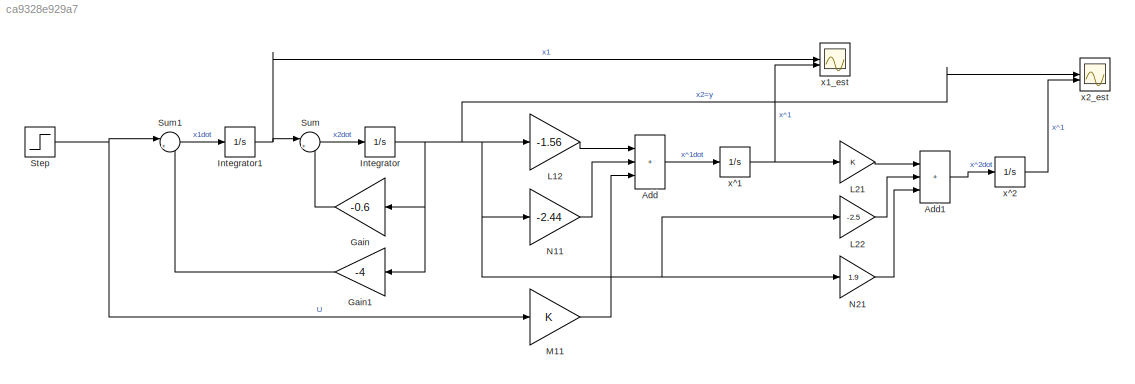
MODEL slx_ca9328e929a7
KIND model
CONFIG AbsTol = auto
CONFIG EnableMultiTasking = off
CONFIG FixedStep = auto
CONFIG MaxStep = auto
CONFIG MinStep = auto
CONFIG RelTol = 1e-3
CONFIG SampleTimeConstraint = Unconstrained
CONFIG SolverName = VariableStepAuto
CONFIG StartTime = 0.0
CONFIG StopTime = 10.0
BLOCK [Sum] Add
  IconShape = rectangular
  Inputs = +++
BLOCK [Sum] Add1
  IconShape = rectangular
  Inputs = +++
BLOCK [Gain] Gain
  Gain = -0.6
BLOCK [Gain] Gain1
  Gain = -4
BLOCK [Integrator] Integrator
BLOCK [Integrator] Integrator1
BLOCK [Gain] L12
  Gain = -1.56
BLOCK [Gain] L21
BLOCK [Gain] L22
  Gain = -2.5
BLOCK [Gain] M11
BLOCK [Gain] N11
  Gain = -2.44
BLOCK [Gain] N21
  Gain = 1.9
BLOCK [Step] Step
  SampleTime = 0
BLOCK [Sum] Sum
  Inputs = |++
BLOCK [Sum] Sum1
  Inputs = |++
BLOCK [Scope] x1_est
  Floating = off
  NumInputPorts = 2
  ScopeSpecificationString = Simulink.scopes.TimeScopeBlockCfg('CurrentConfiguration', extmgr.ConfigurationSet(extmgr.Configuration('Core','General UI',true),extmgr.Configuration('Core','Source UI',true),extmgr.Configuration('Sources','WiredSimulink',true,'DataLoggingVariableName','ScopeData1'),extmgr.Configuration('Visuals','Time Domain',true,'SerializedDisplays',{struct('MinYLimReal','-0.1647','MaxYLimReal','0.60852','YLabe...<+1445ch>
BLOCK [Scope] x2_est
  Floating = off
  NumInputPorts = 2
  ScopeSpecificationString = Simulink.scopes.TimeScopeBlockCfg('CurrentConfiguration', extmgr.ConfigurationSet(extmgr.Configuration('Core','General UI',true),extmgr.Configuration('Core','Source UI',true),extmgr.Configuration('Sources','WiredSimulink',true,'DataLoggingVariableName','ScopeData1'),extmgr.Configuration('Visuals','Time Domain',true,'SerializedDisplays',{struct('MinYLimReal','-0.05065','MaxYLimReal','0.45582','YLab...<+1449ch>
BLOCK [Integrator] x^1
BLOCK [Integrator] x^2
LINE Add1:1 -> x^2:1
LINE Add:1 -> x^1:1
LINE Gain1:1 -> Sum1:2
LINE Gain:1 -> Sum:2
NET Integrator1:1 -> Sum:1, x1_est:1
NET Integrator:1 -> Gain1:1, Gain:1, L12:1, L22:1, N11:1, N21:1, x2_est:1
LINE L12:1 -> Add:1
LINE L21:1 -> Add1:1
LINE L22:1 -> Add1:2
LINE M11:1 -> Add:3
LINE N11:1 -> Add:2
LINE N21:1 -> Add1:3
NET Step:1 -> M11:1, Sum1:1
LINE Sum1:1 -> Integrator1:1
LINE Sum:1 -> Integrator:1
NET x^1:1 -> L21:1, x1_est:2
LINE x^2:1 -> x2_est:2
note: NET lines group one-source signal fan-out (src -> all destinations, sorted); 1:1 wires keep LINE
